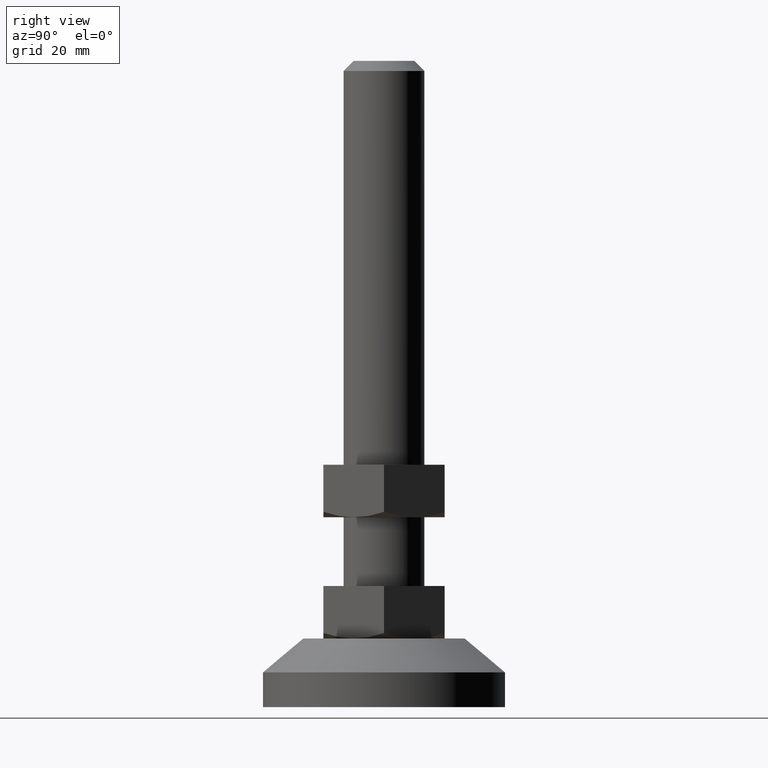
[diagram: clean part render]
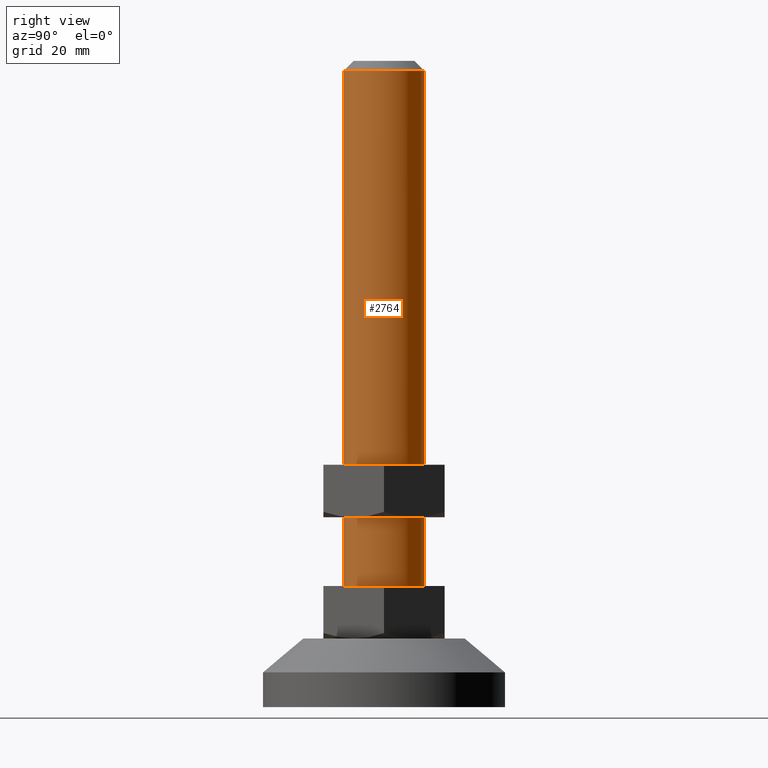
[diagram: same view with one face highlighted and labeled with its STEP entity id]
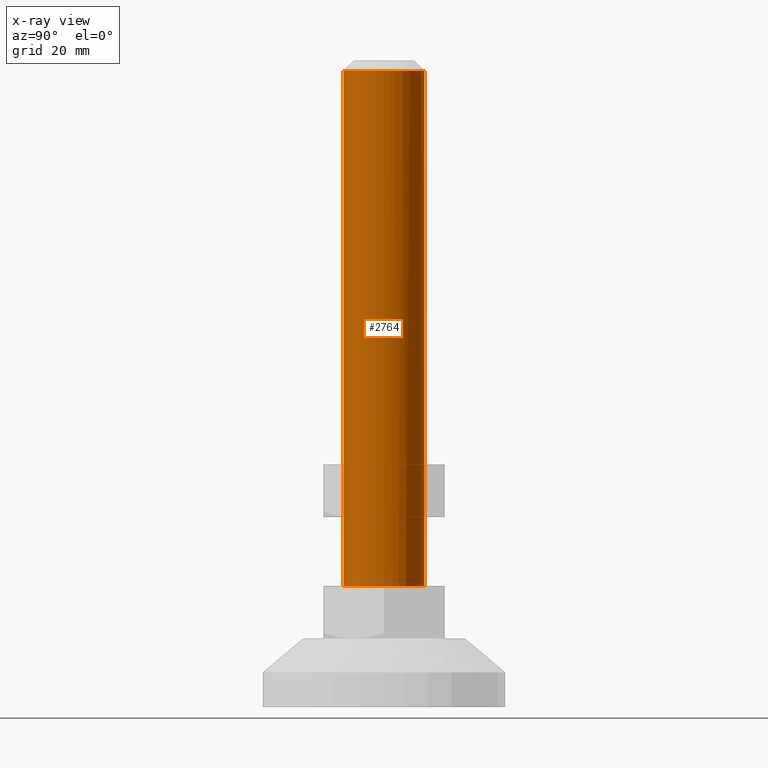
[diagram: x-ray of the same camera — body ghosted, the highlighted face saturated]
A machine part, right view. The second image highlights one B-rep face of the part: STEP entity #2764.
The next image is the same camera in x-ray: the body ghosted, the highlighted face saturated — about 0% of this face is hidden behind the body in this view.
In plain terms, the highlighted face is a freeform B-spline surface patch.
Its self-contained STEP definition (entity closure, byte-faithful):
#2547=CARTESIAN_POINT('',(0.087265356436888,9.999619230826905,157.499999999802210));
#2548=VERTEX_POINT('',#2547);
#2554=CARTESIAN_POINT('',(-0.610485395540105,9.981347984206954,157.500000000000000));
#2555=VERTEX_POINT('',#2554);
#2556=CARTESIAN_POINT('',(-0.610485395540105,9.981347984206954,157.500000000000000));
#2557=CARTESIAN_POINT('',(-0.378208450620355,9.995555715713653,157.499999999934200));
#2558=CARTESIAN_POINT('',(-0.145436297702453,10.001650550752959,157.499999999868010));
#2559=CARTESIAN_POINT('',(0.087265356436888,9.999619230826905,157.499999999802210));
#2560=B_SPLINE_CURVE_WITH_KNOTS('',3,(#2556,#2557,#2558,#2559),.UNSPECIFIED.,.F.,.U.,(4,4),(1.432997E-010,0.698133917609941),.UNSPECIFIED.);
#2561=EDGE_CURVE('',#2555,#2548,#2560,.T.);
#2597=CARTESIAN_POINT('',(0.610485395540104,-9.981347984206954,157.500000000000000));
#2598=VERTEX_POINT('',#2597);
#2606=CARTESIAN_POINT('',(10.0,0.0,157.500000000000000));
#2607=VERTEX_POINT('',#2606);
#2608=CARTESIAN_POINT('',(10.0,0.0,157.500000000000000));
#2609=CARTESIAN_POINT('',(10.0,-9.407060668876099,157.500000000000060));
#2610=CARTESIAN_POINT('',(0.610485395540105,-9.981347984206956,157.499999999999970));
#2618=(BOUNDED_CURVE()B_SPLINE_CURVE(2,(#2608,#2609,#2610),.UNSPECIFIED.,.F.,.U.)B_SPLINE_CURVE_WITH_KNOTS((3,3),(0.0,0.239332962238657),.UNSPECIFIED.)CURVE()GEOMETRIC_REPRESENTATION_ITEM()RATIONAL_B_SPLINE_CURVE((1.0,0.719603993287045,0.976072041666106))REPRESENTATION_ITEM(''));
#2619=EDGE_CURVE('',#2607,#2598,#2618,.T.);
#2621=CARTESIAN_POINT('',(0.087265356436888,9.999619230826905,157.499999999802130));
#2622=CARTESIAN_POINT('',(10.000000000000865,9.913112104609795,157.499999999901040));
#2623=CARTESIAN_POINT('',(10.0,0.0,157.500000000000000));
#2631=(BOUNDED_CURVE()B_SPLINE_CURVE(2,(#2621,#2622,#2623),.UNSPECIFIED.,.F.,.U.)B_SPLINE_CURVE_WITH_KNOTS((3,3),(0.751539894360554,1.0),.UNSPECIFIED.)CURVE()GEOMETRIC_REPRESENTATION_ITEM()RATIONAL_B_SPLINE_CURVE((0.996414028041237,0.708910879650129,1.0))REPRESENTATION_ITEM(''));
#2632=EDGE_CURVE('',#2548,#2607,#2631,.T.);
#2659=CARTESIAN_POINT('',(0.610485395540104,-9.981347984206954,30.000000000000011));
#2660=VERTEX_POINT('',#2659);
#2678=CARTESIAN_POINT('',(0.610485395540104,-9.981347984206954,157.500000000000000));
#2679=CARTESIAN_POINT('',(0.610485395540104,-9.981347984206954,30.000000000000011));
#2680=QUASI_UNIFORM_CURVE('',1,(#2678,#2679),.UNSPECIFIED.,.F.,.U.);
#2681=EDGE_CURVE('',#2598,#2660,#2680,.T.);
#2686=CARTESIAN_POINT('',(-0.610485395540103,9.981347984206956,30.000000000000011));
#2687=VERTEX_POINT('',#2686);
#2688=CARTESIAN_POINT('',(-0.610485395540105,9.981347984206954,157.500000000000000));
#2689=CARTESIAN_POINT('',(-0.610485395540103,9.981347984206956,30.000000000000011));
#2690=QUASI_UNIFORM_CURVE('',1,(#2688,#2689),.UNSPECIFIED.,.F.,.U.);
#2691=EDGE_CURVE('',#2555,#2687,#2690,.T.);
#2709=CARTESIAN_POINT('',(-0.610485395348570,9.981347984218667,160.687500000000000));
#2710=CARTESIAN_POINT('',(9.370862588870097,10.591833379567237,160.687500000000060));
#2711=CARTESIAN_POINT('',(9.981347984218667,0.610485395348570,160.687500000000000));
#2712=CARTESIAN_POINT('',(10.591833379567237,-9.370862588870097,160.687500000000060));
#2713=CARTESIAN_POINT('',(0.610485395348570,-9.981347984218667,160.687500000000000));
#2714=CARTESIAN_POINT('',(-0.610485395348570,9.981347984218667,26.732812499999991));
#2715=CARTESIAN_POINT('',(9.370862588870097,10.591833379567237,26.732812499999994));
#2716=CARTESIAN_POINT('',(9.981347984218667,0.610485395348570,26.732812499999991));
#2717=CARTESIAN_POINT('',(10.591833379567237,-9.370862588870097,26.732812499999994));
#2718=CARTESIAN_POINT('',(0.610485395348570,-9.981347984218667,26.732812499999991));
#2726=(BOUNDED_SURFACE()B_SPLINE_SURFACE(2,1,((#2709,#2714),(#2710,#2715),(#2711,#2716),(#2712,#2717),(#2713,#2718)),.UNSPECIFIED.,.F.,.F.,.U.)B_SPLINE_SURFACE_WITH_KNOTS((3,2,3),(2,2),(0.0,16.568542494923800,33.137084989847587),(0.0,133.954687500000090),.UNSPECIFIED.)GEOMETRIC_REPRESENTATION_ITEM()RATIONAL_B_SPLINE_SURFACE(((1.0,1.0),(0.707106781186548,0.707106781186548),(1.0,1.0),(0.707106781186548,0.707106781186548),(1.0,1.0)))REPRESENTATION_ITEM('')SURFACE());
#2727=CARTESIAN_POINT('',(10.0,0.0,30.0));
#2728=VERTEX_POINT('',#2727);
#2729=CARTESIAN_POINT('',(10.0,0.0,30.0));
#2730=CARTESIAN_POINT('',(10.0,-9.407060668876099,30.000000000000004));
#2731=CARTESIAN_POINT('',(0.610485395540105,-9.981347984206956,30.000000000000004));
#2739=(BOUNDED_CURVE()B_SPLINE_CURVE(2,(#2729,#2730,#2731),.UNSPECIFIED.,.F.,.U.)B_SPLINE_CURVE_WITH_KNOTS((3,3),(0.0,0.239332962238657),.UNSPECIFIED.)CURVE()GEOMETRIC_REPRESENTATION_ITEM()RATIONAL_B_SPLINE_CURVE((1.0,0.719603993287045,0.976072041666106))REPRESENTATION_ITEM(''));
#2740=EDGE_CURVE('',#2728,#2660,#2739,.T.);
#2741=ORIENTED_EDGE('',*,*,#2740,.F.);
#2742=CARTESIAN_POINT('',(-0.610485395540101,9.981347984206954,30.0));
#2743=CARTESIAN_POINT('',(-0.305527633081924,10.0,30.0));
#2744=CARTESIAN_POINT('',(0.0,10.0,30.0));
#2745=CARTESIAN_POINT('',(10.000000000000002,10.000000000000002,30.000000000000004));
#2746=CARTESIAN_POINT('',(10.0,0.0,30.0));
#2754=(BOUNDED_CURVE()B_SPLINE_CURVE(2,(#2742,#2743,#2744,#2745,#2746),.UNSPECIFIED.,.F.,.U.)B_SPLINE_CURVE_WITH_KNOTS((3,2,3),(0.739332962238657,0.750000000000000,1.0),.UNSPECIFIED.)CURVE()GEOMETRIC_REPRESENTATION_ITEM()RATIONAL_B_SPLINE_CURVE((0.976072041666106,0.987502787899503,1.0,0.707106781186548,1.0))REPRESENTATION_ITEM(''));
#2755=EDGE_CURVE('',#2687,#2728,#2754,.T.);
#2756=ORIENTED_EDGE('',*,*,#2755,.F.);
#2757=ORIENTED_EDGE('',*,*,#2691,.F.);
#2758=ORIENTED_EDGE('',*,*,#2561,.T.);
#2759=ORIENTED_EDGE('',*,*,#2632,.T.);
#2760=ORIENTED_EDGE('',*,*,#2619,.T.);
#2761=ORIENTED_EDGE('',*,*,#2681,.T.);
#2762=EDGE_LOOP('',(#2741,#2756,#2757,#2758,#2759,#2760,#2761));
#2763=FACE_OUTER_BOUND('',#2762,.T.);
#2764=ADVANCED_FACE('',(#2763),#2726,.T.);